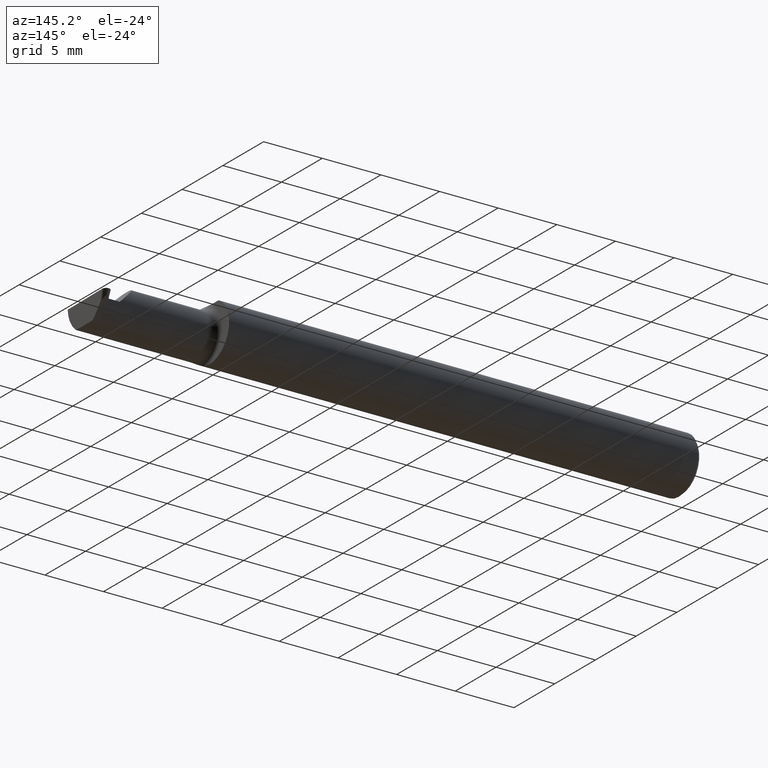
[diagram: clean part render]
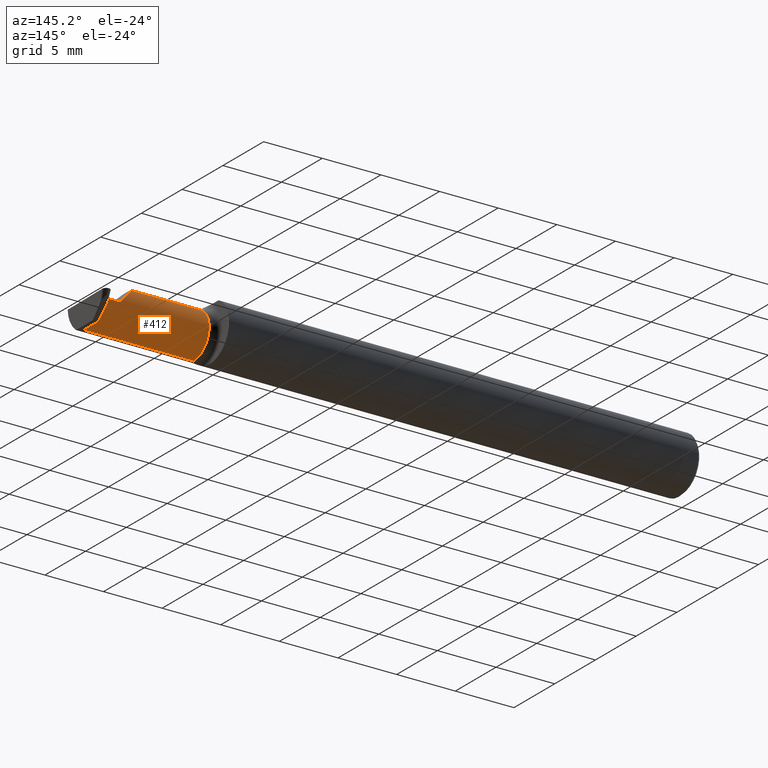
[diagram: same view with one face highlighted and labeled with its STEP entity id]
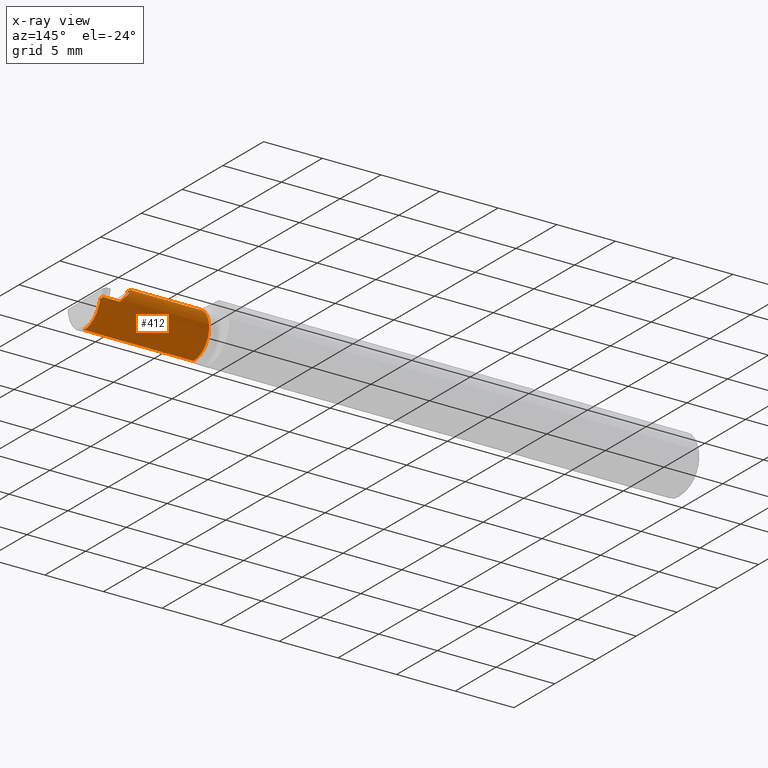
[diagram: x-ray of the same camera — body ghosted, the highlighted face saturated]
A machine part, auxiliary view. The second image highlights one B-rep face of the part: STEP entity #412.
The next image is the same camera in x-ray: the body ghosted, the highlighted face saturated — about 0% of this face is hidden behind the body in this view.
In plain terms, the highlighted cylindrical surface (edge-blend (fillet) strip) has radius 1.905 mm, axis along (-1, -0, -0).
Its self-contained STEP definition (entity closure, byte-faithful):
#14 = LINE ( 'NONE', #442, #734 ) ;
#38 = CARTESIAN_POINT ( 'NONE',  ( 1.834999999999999298, 0.001333982822017845335, 0.07500000000000003886 ) ) ;
#50 = VERTEX_POINT ( 'NONE', #623 ) ;
#57 = DIRECTION ( 'NONE',  ( -1.000000000000000000, -0.000000000000000000, -0.000000000000000000 ) ) ;
#59 = ORIENTED_EDGE ( 'NONE', *, *, #368, .T. ) ;
#72 = CARTESIAN_POINT ( 'NONE',  ( 1.975446786689251333, 0.03221730376948541558, -0.005231735530809524318 ) ) ;
#73 = EDGE_CURVE ( 'NONE', #788, #50, #798, .T. ) ;
#75 = CARTESIAN_POINT ( 'NONE',  ( 1.969065783658063173, 0.03221730376948681029, -0.005231735530809442786 ) ) ;
#94 = VERTEX_POINT ( 'NONE', #138 ) ;
#114 = CARTESIAN_POINT ( 'NONE',  ( 1.910000000000000142, 0.03239999999999999131, 5.082284216461538453E-17 ) ) ;
#129 = ORIENTED_EDGE ( 'NONE', *, *, #73, .F. ) ;
#138 = CARTESIAN_POINT ( 'NONE',  ( 1.609999999999999654, -0.04260000000000003367, 0.07500000000000005274 ) ) ;
#141 = CARTESIAN_POINT ( 'NONE',  ( 1.609999999999999654, -0.04260000000000003367, 0.000000000000000000 ) ) ;
#146 = EDGE_CURVE ( 'NONE', #338, #94, #288, .T. ) ;
#154 = VECTOR ( 'NONE', #332, 39.37007874015748143 ) ;
#164 = DIRECTION ( 'NONE',  ( -1.000000000000000000, -0.000000000000000000, -0.000000000000000000 ) ) ;
#174 = CARTESIAN_POINT ( 'NONE',  ( 1.969065783658063173, 0.03221730376948681029, -0.005231735530809442786 ) ) ;
#176 = CARTESIAN_POINT ( 'NONE',  ( 1.976921122959496957, 0.02931965133412150343, -0.04667009593691547747 ) ) ;
#181 = DIRECTION ( 'NONE',  ( 0.000000000000000000, 0.000000000000000000, 1.000000000000000000 ) ) ;
#187 = CARTESIAN_POINT ( 'NONE',  ( 1.910000000000000142, 0.03239999999999999131, 5.082284216461538453E-17 ) ) ;
#246 = CARTESIAN_POINT ( 'NONE',  ( 1.978015756548945348, -0.04260000000000003367, -0.07500000000000002498 ) ) ;
#264 = DIRECTION ( 'NONE',  ( -1.000000000000000000, -0.000000000000000000, -0.000000000000000000 ) ) ;
#272 = EDGE_CURVE ( 'NONE', #362, #788, #775, .T. ) ;
#288 = LINE ( 'NONE', #772, #154 ) ;
#316 = CARTESIAN_POINT ( 'NONE',  ( 1.969248479888576320, 0.03239999999999999825, 0.000000000000000000 ) ) ;
#332 = DIRECTION ( 'NONE',  ( -1.000000000000000000, -0.000000000000000000, -0.000000000000000000 ) ) ;
#338 = VERTEX_POINT ( 'NONE', #519 ) ;
#342 = VECTOR ( 'NONE', #793, 39.37007874015748143 ) ;
#343 = ORIENTED_EDGE ( 'NONE', *, *, #272, .F. ) ;
#359 = EDGE_LOOP ( 'NONE', ( #674, #462, #658, #465, #59, #713, #129, #343 ) ) ;
#360 = FACE_OUTER_BOUND ( 'NONE', #359, .T. ) ;
#362 = VERTEX_POINT ( 'NONE', #401 ) ;
#368 = EDGE_CURVE ( 'NONE', #338, #726, #636, .T. ) ;
#383 = DIRECTION ( 'NONE',  ( 1.000000000000000000, 0.000000000000000000, 0.000000000000000000 ) ) ;
#386 = EDGE_CURVE ( 'NONE', #670, #402, #538, .T. ) ;
#401 = CARTESIAN_POINT ( 'NONE',  ( 1.975446786689251333, 0.03221730376948541558, -0.005231735530809524318 ) ) ;
#402 = VERTEX_POINT ( 'NONE', #675 ) ;
#409 = CARTESIAN_POINT ( 'NONE',  ( 1.834999999999999520, -0.04260000000000003367, 0.07500000000000003886 ) ) ;
#412 = ADVANCED_FACE ( 'NONE', ( #360 ), #478, .T. ) ;
#431 = CARTESIAN_POINT ( 'NONE',  ( 1.969187581145071864, 0.03233910125649559764, -0.001743911843603144704 ) ) ;
#435 = DIRECTION ( 'NONE',  ( 0.000000000000000000, 0.000000000000000000, 1.000000000000000000 ) ) ;
#440 = CARTESIAN_POINT ( 'NONE',  ( 1.969126682401567408, 0.03227820251299121090, -0.003487823687206289408 ) ) ;
#442 = CARTESIAN_POINT ( 'NONE',  ( 1.584999999999999964, 0.03239999999999999131, 5.082284216461538453E-17 ) ) ;
#451 = EDGE_CURVE ( 'NONE', #670, #362, #778, .T. ) ;
#462 = ORIENTED_EDGE ( 'NONE', *, *, #386, .T. ) ;
#463 = CARTESIAN_POINT ( 'NONE',  ( 1.584999999999999964, 0.03221730376948627600, -0.005231735530817208275 ) ) ;
#465 = ORIENTED_EDGE ( 'NONE', *, *, #146, .F. ) ;
#478 = CYLINDRICAL_SURFACE ( 'NONE', #667, 0.07500000000000003886 ) ;
#480 = CARTESIAN_POINT ( 'NONE',  ( 1.978015756548945348, -0.04260000000000003367, -0.07500000000000002498 ) ) ;
#499 = VECTOR ( 'NONE', #164, 39.37007874015748143 ) ;
#501 = CIRCLE ( 'NONE', #789, 0.07500000000000005274 ) ;
#519 = CARTESIAN_POINT ( 'NONE',  ( 1.834999999999999520, -0.04260000000000003367, 0.07500000000000003886 ) ) ;
#538 = LINE ( 'NONE', #594, #342 ) ;
#541 = CARTESIAN_POINT ( 'NONE',  ( 1.977964271591899248, -0.001060451341131625784, -0.07500000000000003886 ) ) ;
#544 = EDGE_CURVE ( 'NONE', #726, #50, #14, .T. ) ;
#594 = CARTESIAN_POINT ( 'NONE',  ( 1.584999999999999964, -0.04260000000000002673, -0.07500000000000003886 ) ) ;
#620 = EDGE_CURVE ( 'NONE', #94, #402, #501, .T. ) ;
#623 = CARTESIAN_POINT ( 'NONE',  ( 1.969248479888576320, 0.03239999999999999825, 0.000000000000000000 ) ) ;
#636 =( BOUNDED_CURVE ( )  B_SPLINE_CURVE ( 3, ( #409, #38, #659, #114 ),
 .UNSPECIFIED., .F., .F. ) 
 B_SPLINE_CURVE_WITH_KNOTS ( ( 4, 4 ),
 ( 0.000000000000000000, 1.570796326794896336 ),
 .UNSPECIFIED. ) 
 CURVE ( )  GEOMETRIC_REPRESENTATION_ITEM ( )  RATIONAL_B_SPLINE_CURVE ( ( 1.000000000000000000, 0.8047378541243650485, 0.8047378541243650485, 1.000000000000000000 ) ) 
 REPRESENTATION_ITEM ( '' )  );
#658 = ORIENTED_EDGE ( 'NONE', *, *, #620, .F. ) ;
#659 = CARTESIAN_POINT ( 'NONE',  ( 1.866066017177981706, 0.03239999999999999131, 0.04393398282201791544 ) ) ;
#667 = AXIS2_PLACEMENT_3D ( 'NONE', #806, #57, #181 ) ;
#670 = VERTEX_POINT ( 'NONE', #480 ) ;
#674 = ORIENTED_EDGE ( 'NONE', *, *, #451, .F. ) ;
#675 = CARTESIAN_POINT ( 'NONE',  ( 1.609999999999999654, -0.04260000000000002673, -0.07500000000000005274 ) ) ;
#713 = ORIENTED_EDGE ( 'NONE', *, *, #544, .T. ) ;
#726 = VERTEX_POINT ( 'NONE', #187 ) ;
#734 = VECTOR ( 'NONE', #383, 39.37007874015748143 ) ;
#772 = CARTESIAN_POINT ( 'NONE',  ( 1.584999999999999964, -0.04260000000000003367, 0.07500000000000003886 ) ) ;
#775 = LINE ( 'NONE', #463, #499 ) ;
#778 =( BOUNDED_CURVE ( )  B_SPLINE_CURVE ( 3, ( #246, #541, #176, #72 ),
 .UNSPECIFIED., .F., .F. ) 
 B_SPLINE_CURVE_WITH_KNOTS ( ( 4, 4 ),
 ( 3.176499238629679756, 4.677482395344799926 ),
 .UNSPECIFIED. ) 
 CURVE ( )  GEOMETRIC_REPRESENTATION_ITEM ( )  RATIONAL_B_SPLINE_CURVE ( ( 1.000000000000000000, 0.8209024677461143060, 0.8209024677461143060, 1.000000000000000000 ) ) 
 REPRESENTATION_ITEM ( '' )  );
#788 = VERTEX_POINT ( 'NONE', #174 ) ;
#789 = AXIS2_PLACEMENT_3D ( 'NONE', #141, #264, #435 ) ;
#793 = DIRECTION ( 'NONE',  ( -1.000000000000000000, -0.000000000000000000, -0.000000000000000000 ) ) ;
#798 = B_SPLINE_CURVE_WITH_KNOTS ( 'NONE', 3,
 ( #75, #440, #431, #316 ),
 .UNSPECIFIED., .F., .F.,
 ( 4, 4 ),
 ( 0.000000000000000000, 1.000000000000000000 ),
 .UNSPECIFIED. ) ;
#806 = CARTESIAN_POINT ( 'NONE',  ( 1.584999999999999964, -0.04260000000000003367, 0.000000000000000000 ) ) ;